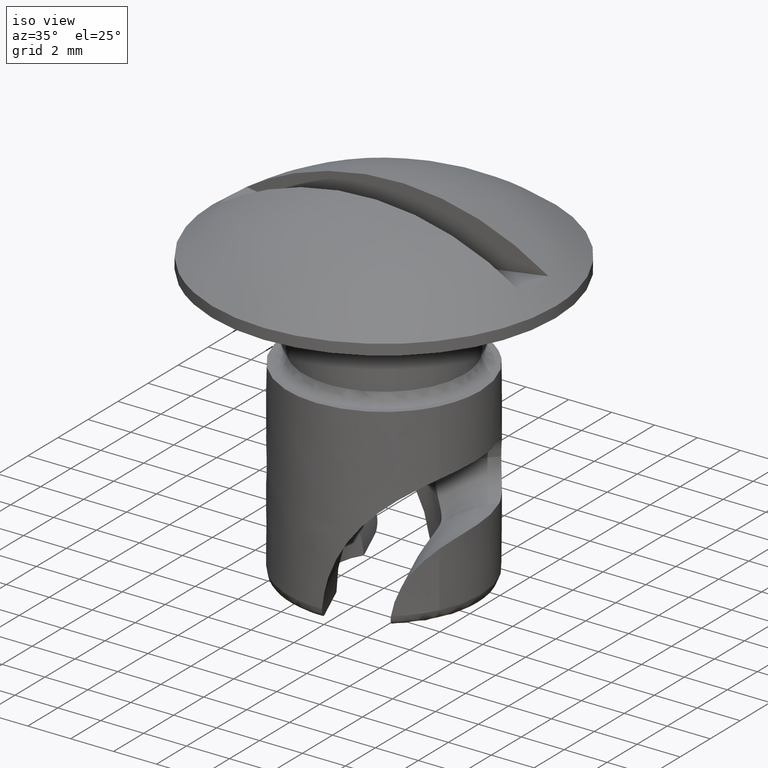
[diagram: clean part render]
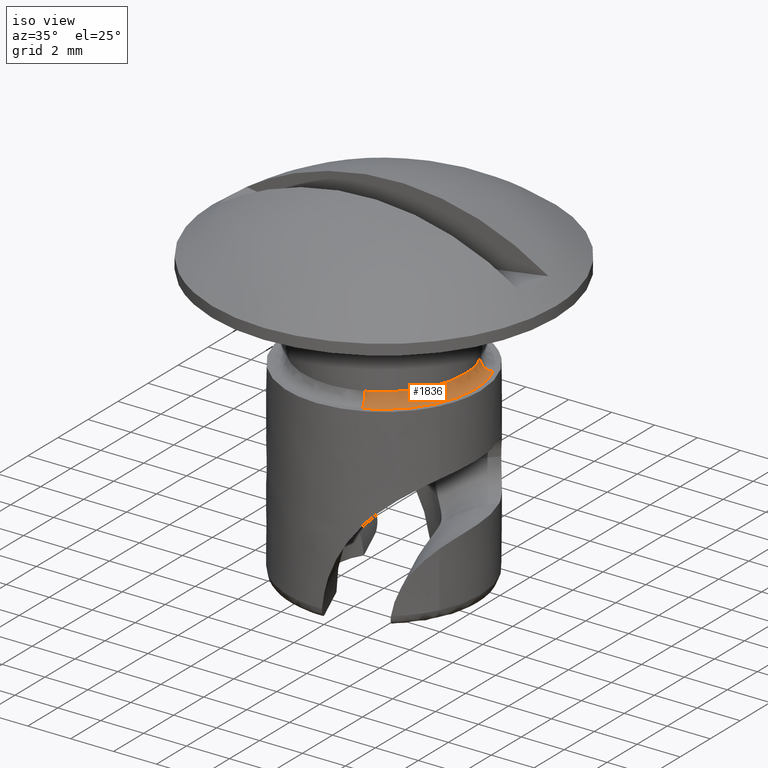
[diagram: same view with one face highlighted and labeled with its STEP entity id]
A machine part, iso view. The second image highlights one B-rep face of the part: STEP entity #1836.
In plain terms, the highlighted face is a freeform B-spline surface patch.
Its self-contained STEP definition (entity closure, byte-faithful):
#1267=CARTESIAN_POINT('',(3.432154397328409,1.510899133926307,-3.499999999961143));
#1268=VERTEX_POINT('',#1267);
#1354=CARTESIAN_POINT('',(1.510899133926808,-3.432154397328188,-3.499999999961309));
#1355=VERTEX_POINT('',#1354);
#1375=CARTESIAN_POINT('',(3.750000000000000,0.0,-3.499999999999950));
#1376=VERTEX_POINT('',#1375);
#1377=CARTESIAN_POINT('',(1.510899133926808,-3.432154397328188,-3.499999999961309));
#1378=CARTESIAN_POINT('',(1.686566080205111,-3.354833019636873,-3.499999999964336));
#1379=CARTESIAN_POINT('',(2.045958502614331,-3.162451325484676,-3.499999999970552));
#1380=CARTESIAN_POINT('',(2.495624089530228,-2.817749743284582,-3.499999999978300));
#1381=CARTESIAN_POINT('',(2.857018401460965,-2.443320568404213,-3.499999999984544));
#1382=CARTESIAN_POINT('',(3.183743222212239,-2.009791262928793,-3.499999999990153));
#1383=CARTESIAN_POINT('',(3.483923659336320,-1.450117550843882,-3.499999999995408));
#1384=CARTESIAN_POINT('',(3.700466435602819,-0.745135403477142,-3.499999999999086));
#1385=CARTESIAN_POINT('',(3.750032708715117,-0.248384767045351,-3.499999999999972));
#1386=CARTESIAN_POINT('',(3.750000000000000,0.0,-3.499999999999950));
#1387=B_SPLINE_CURVE_WITH_KNOTS('',3,(#1377,#1378,#1379,#1380,#1381,#1382,#1383,#1384,#1385,#1386),.UNSPECIFIED.,.F.,.U.,(4,1,1,1,1,1,1,4),(3.969088E-009,0.575793866233937,1.219335630741739,1.693523226116215,2.133837807687332,2.845112959542889,3.590263623742193,4.335412597967763),.UNSPECIFIED.);
#1388=EDGE_CURVE('',#1355,#1376,#1387,.T.);
#1390=CARTESIAN_POINT('',(3.750000000000000,0.0,-3.499999999999950));
#1391=CARTESIAN_POINT('',(3.750037846977927,0.251085772787635,-3.499999999999939));
#1392=CARTESIAN_POINT('',(3.697727515017407,0.769430678371529,-3.499999999993599));
#1393=CARTESIAN_POINT('',(3.539888489104389,1.266288944101782,-3.499999999974277));
#1394=CARTESIAN_POINT('',(3.432154397328409,1.510899133926307,-3.499999999961143));
#1395=B_SPLINE_CURVE_WITH_KNOTS('',3,(#1390,#1391,#1392,#1393,#1394),.UNSPECIFIED.,.F.,.U.,(4,1,4),(9.589749E-010,0.753249262359214,1.555091083875855),.UNSPECIFIED.);
#1396=EDGE_CURVE('',#1376,#1268,#1395,.T.);
#1703=CARTESIAN_POINT('',(3.889774983364841,1.712352351683468,-3.999999999999975));
#1704=VERTEX_POINT('',#1703);
#1730=CARTESIAN_POINT('',(1.712352351675552,-3.889774983342570,-3.999999999999975));
#1731=VERTEX_POINT('',#1730);
#1751=CARTESIAN_POINT('',(1.510899133926808,-3.432154397328188,-3.499999999961309));
#1752=CARTESIAN_POINT('',(1.510887234517491,-3.432127366663582,-3.553180186666073));
#1753=CARTESIAN_POINT('',(1.517004935929633,-3.446024320691020,-3.647249281436200));
#1754=CARTESIAN_POINT('',(1.539017712909611,-3.496028485500592,-3.762744980360762));
#1755=CARTESIAN_POINT('',(1.565510679589648,-3.556209837146235,-3.846989722038372));
#1756=CARTESIAN_POINT('',(1.600617425332521,-3.635958226074333,-3.922186924646125));
#1757=CARTESIAN_POINT('',(1.649729050018498,-3.747520060229805,-3.983525079374803));
#1758=CARTESIAN_POINT('',(1.690925085149688,-3.841100862504352,-4.000031344645032));
#1759=CARTESIAN_POINT('',(1.712352351675552,-3.889774983342570,-3.999999999999975));
#1760=B_SPLINE_CURVE_WITH_KNOTS('',3,(#1751,#1752,#1753,#1754,#1755,#1756,#1757,#1758,#1759),.UNSPECIFIED.,.F.,.U.,(4,1,1,1,1,1,4),(0.000000020235551,0.159536870100373,0.282262296944830,0.380439047648895,0.478609051372482,0.625881022200471,0.785417872065352),.UNSPECIFIED.);
#1761=EDGE_CURVE('',#1355,#1731,#1760,.T.);
#1767=CARTESIAN_POINT('',(3.432154397328409,1.510899133926307,-3.499999999961143));
#1768=CARTESIAN_POINT('',(3.432140309254738,1.510892932089988,-3.544998234574770));
#1769=CARTESIAN_POINT('',(3.441829386669827,1.515158246810589,-3.622708569075136));
#1770=CARTESIAN_POINT('',(3.486478144495722,1.534813472574032,-3.749283753883436));
#1771=CARTESIAN_POINT('',(3.563428965604083,1.568688676168943,-3.862645832235189));
#1772=CARTESIAN_POINT('',(3.674839797483764,1.617733826802824,-3.948352227315418));
#1773=CARTESIAN_POINT('',(3.784947558145922,1.666205340896820,-3.991380585027264));
#1774=CARTESIAN_POINT('',(3.856080665501869,1.697519477112458,-4.000005692945446));
#1775=CARTESIAN_POINT('',(3.889774983364841,1.712352351683468,-3.999999999999975));
#1776=B_SPLINE_CURVE_WITH_KNOTS('',3,(#1767,#1768,#1769,#1770,#1771,#1772,#1773,#1774,#1775),.UNSPECIFIED.,.F.,.U.,(4,1,1,1,1,1,4),(0.000000020235496,0.134993445511855,0.233172096288429,0.404978844657731,0.552245796021805,0.674971222867673,0.785417872074758),.UNSPECIFIED.);
#1777=EDGE_CURVE('',#1268,#1704,#1776,.T.);
#1782=CARTESIAN_POINT('',(1.511497963336204,-3.433514696600925,-3.461476434307464));
#1783=CARTESIAN_POINT('',(4.945012659937130,-1.922016733264720,-3.461476434307463));
#1784=CARTESIAN_POINT('',(3.433514696600925,1.511497963336204,-3.461476434307464));
#1785=CARTESIAN_POINT('',(1.509225494916602,-3.428352563468410,-3.534463229504427));
#1786=CARTESIAN_POINT('',(4.937578058385010,-1.919127068551807,-3.534463229504425));
#1787=CARTESIAN_POINT('',(3.428352563468410,1.509225494916602,-3.534463229504427));
#1788=CARTESIAN_POINT('',(1.515478543581346,-3.442556971949100,-3.606003554960978));
#1789=CARTESIAN_POINT('',(4.958035515530445,-1.927078428367755,-3.606003554960978));
#1790=CARTESIAN_POINT('',(3.442556971949100,1.515478543581346,-3.606003554960978));
#1791=CARTESIAN_POINT('',(1.552643442870654,-3.526980656931036,-4.031202387285400));
#1792=CARTESIAN_POINT('',(5.079624099801690,-1.974337214060381,-4.031202387285399));
#1793=CARTESIAN_POINT('',(3.526980656931036,1.552643442870654,-4.031202387285400));
#1794=CARTESIAN_POINT('',(1.727450663930042,-3.924072268787789,-3.998593759689869));
#1795=CARTESIAN_POINT('',(5.651522932717831,-2.196621604857748,-3.998593759689869));
#1796=CARTESIAN_POINT('',(3.924072268787791,1.727450663930041,-3.998593759689869));
#1804=(BOUNDED_SURFACE()B_SPLINE_SURFACE(2,2,((#1782,#1785,#1788,#1791,#1794),(#1783,#1786,#1789,#1792,#1795),(#1784,#1787,#1790,#1793,#1796)),.UNSPECIFIED.,.F.,.F.,.U.)B_SPLINE_SURFACE_WITH_KNOTS((3,3),(3,2,3),(0.0,7.103718679130216),(0.0,0.161044651073553,0.909284458453738),.UNSPECIFIED.)GEOMETRIC_REPRESENTATION_ITEM()RATIONAL_B_SPLINE_SURFACE(((0.909306260662616,0.943516738363331,1.0,0.737569521710330,0.955937996810446),(0.642976623089918,0.667167083859725,0.707106781186548,0.521540410397893,0.675950239938551),(0.909306260662616,0.943516738363331,1.0,0.737569521710330,0.955937996810446)))REPRESENTATION_ITEM('')SURFACE());
#1805=CARTESIAN_POINT('',(4.250000000000000,0.0,-4.0));
#1806=VERTEX_POINT('',#1805);
#1807=CARTESIAN_POINT('',(3.889774983364841,1.712352351683468,-3.999999999999975));
#1808=CARTESIAN_POINT('',(3.967449397739971,1.535927671769050,-3.999999999999976));
#1809=CARTESIAN_POINT('',(4.101854820919138,1.163831840874370,-4.000000000000015));
#1810=CARTESIAN_POINT('',(4.223106148635100,0.587477742946135,-3.999999999999916));
#1811=CARTESIAN_POINT('',(4.250006932010799,0.192766409927712,-4.000000000000080));
#1812=CARTESIAN_POINT('',(4.250000000000000,0.0,-4.0));
#1813=B_SPLINE_CURVE_WITH_KNOTS('',3,(#1807,#1808,#1809,#1810,#1811,#1812),.UNSPECIFIED.,.F.,.U.,(4,1,1,4),(9.525194E-010,0.578300260191282,1.184136302466563,1.762436561705376),.UNSPECIFIED.);
#1814=EDGE_CURVE('',#1704,#1806,#1813,.T.);
#1815=ORIENTED_EDGE('',*,*,#1814,.F.);
#1816=ORIENTED_EDGE('',*,*,#1777,.F.);
#1817=ORIENTED_EDGE('',*,*,#1396,.F.);
#1818=ORIENTED_EDGE('',*,*,#1388,.F.);
#1819=ORIENTED_EDGE('',*,*,#1761,.T.);
#1820=CARTESIAN_POINT('',(4.250000000000000,0.0,-4.0));
#1821=CARTESIAN_POINT('',(4.250005866013608,-0.191930510250463,-4.000000000000001));
#1822=CARTESIAN_POINT('',(4.221357637160880,-0.614180586458162,-4.000000000000002));
#1823=CARTESIAN_POINT('',(4.088831675678134,-1.215973285186425,-3.999999999999992));
#1824=CARTESIAN_POINT('',(3.873212777353313,-1.778860139779530,-3.999999999999999));
#1825=CARTESIAN_POINT('',(3.634906227390268,-2.218438028775804,-3.999999999999983));
#1826=CARTESIAN_POINT('',(3.336163873238264,-2.650333868304645,-4.000000000000023));
#1827=CARTESIAN_POINT('',(2.986430069651946,-3.043436202523111,-3.999999999999911));
#1828=CARTESIAN_POINT('',(2.439012347346107,-3.508017285910014,-4.000000000000028));
#1829=CARTESIAN_POINT('',(2.005158945351484,-3.760949518615652,-3.999999999999943));
#1830=CARTESIAN_POINT('',(1.712352351675552,-3.889774983342570,-3.999999999999975));
#1831=B_SPLINE_CURVE_WITH_KNOTS('',3,(#1820,#1821,#1822,#1823,#1824,#1825,#1826,#1827,#1828,#1829,#1830),.UNSPECIFIED.,.F.,.U.,(4,1,1,1,1,1,1,1,4),(1.476870E-009,0.575793492208624,1.266753470974352,1.842553515805606,2.379961639320130,2.763822562251784,3.416394314482311,3.953807102613135,4.913467610891208),.UNSPECIFIED.);
#1832=EDGE_CURVE('',#1806,#1731,#1831,.T.);
#1833=ORIENTED_EDGE('',*,*,#1832,.F.);
#1834=EDGE_LOOP('',(#1815,#1816,#1817,#1818,#1819,#1833));
#1835=FACE_OUTER_BOUND('',#1834,.T.);
#1836=ADVANCED_FACE('',(#1835),#1804,.F.);